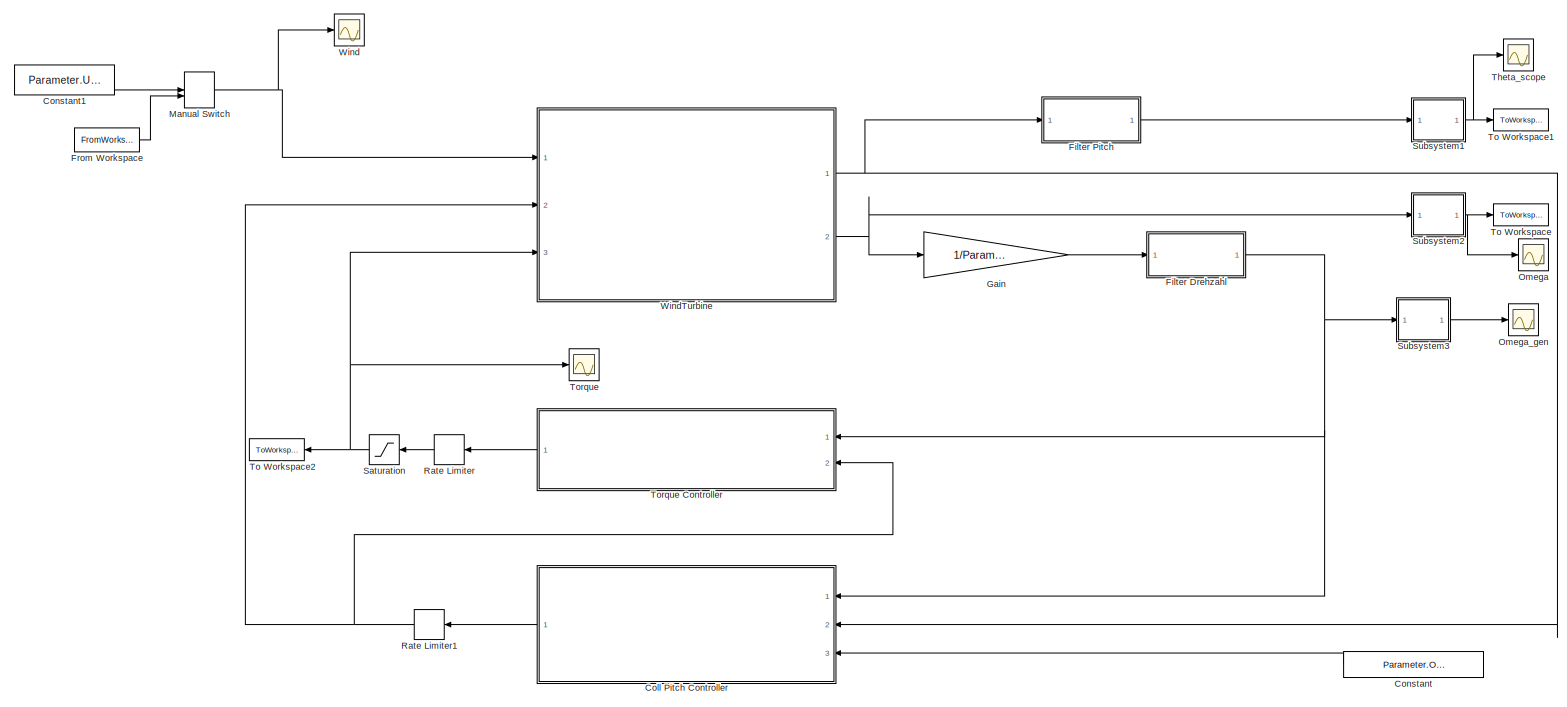
[diagram: root canvas - part 1/1, most of the canvas]
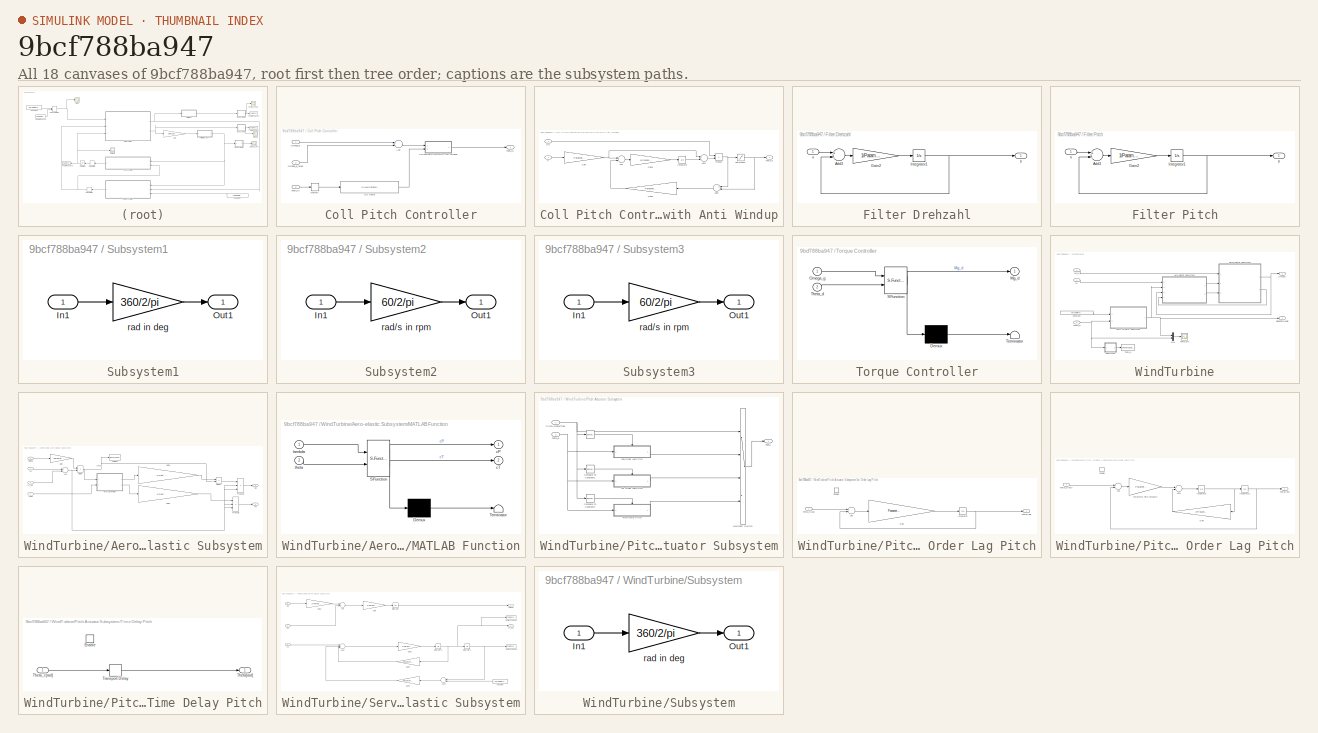
[diagram: thumbnail index - all 18 canvases of the model, root first then tree order]
MODEL slx_9bcf788ba947
KIND model
CONFIG AbsTol = auto
CONFIG EnableMultiTasking = on
CONFIG FixedStep = Parameter.Time.dt
CONFIG MaxStep = auto
CONFIG MinStep = auto
CONFIG RelTol = 1e-3
CONFIG SampleTimeConstraint = Unconstrained
CONFIG Solver = ode4
CONFIG SolverName = ode4
CONFIG StartTime = 0.0
CONFIG StopTime = Parameter.Time.TMax
BLOCK [SubSystem] Coll Pitch Controller
  Ports = [3, 1]
  RequestExecContextInheritance = off
BLOCK [Sum] Coll Pitch Controller/Add
  InputSameDT = off
  Inputs = +-
  OutDataTypeStr = Inherit: Inherit via internal rule
  Ports = [2, 1]
  SaturateOnIntegerOverflow = off
BLOCK [SubSystem] Coll Pitch Controller/Collective Pitch with Anti Windup
  Ports = [2, 1]
  RequestExecContextInheritance = off
BLOCK [Sum] Coll Pitch Controller/Collective Pitch with Anti Windup/Add
  InputSameDT = off
  Inputs = +-
  OutDataTypeStr = Inherit: Inherit via internal rule
  Ports = [2, 1]
  SaturateOnIntegerOverflow = off
BLOCK [Sum] Coll Pitch Controller/Collective Pitch with Anti Windup/Add1
  InputSameDT = off
  OutDataTypeStr = Inherit: Inherit via internal rule
  Ports = [2, 1]
  SaturateOnIntegerOverflow = off
BLOCK [Sum] Coll Pitch Controller/Collective Pitch with Anti Windup/Add2
  InputSameDT = off
  Inputs = +-
  OutDataTypeStr = Inherit: Inherit via internal rule
  Ports = [2, 1]
  SaturateOnIntegerOverflow = off
BLOCK [Inport] Coll Pitch Controller/Collective Pitch with Anti Windup/GS
  IconDisplay = Port number
  Port = 2
BLOCK [Gain] Coll Pitch Controller/Collective Pitch with Anti Windup/Gain
  Gain = Parameter.Pitch.CPC.KP
  OutDataTypeStr = Inherit: Inherit via internal rule
  ParamDataTypeStr = Inherit: Inherit via internal rule
  SaturateOnIntegerOverflow = off
BLOCK [Gain] Coll Pitch Controller/Collective Pitch with Anti Windup/Gain1
  Gain = 1/Parameter.Pitch.CPC.TI
  OutDataTypeStr = Inherit: Inherit via internal rule
  ParamDataTypeStr = Inherit: Inherit via internal rule
  SaturateOnIntegerOverflow = off
BLOCK [Gain] Coll Pitch Controller/Collective Pitch with Anti Windup/Gain2
  Gain = Parameter.Pitch.CPC.AntiWindUp
  OutDataTypeStr = Inherit: Inherit via internal rule
  ParamDataTypeStr = Inherit: Inherit via internal rule
  SaturateOnIntegerOverflow = off
BLOCK [Integrator] Coll Pitch Controller/Collective Pitch with Anti Windup/Integrator
  InitialCondition = Parameter.Pitch.Theta0*(1+Parameter.Pitch.Theta0/Parameter.Pitch.CPC.GS_factor)
  Ports = [1, 1]
BLOCK [Product] Coll Pitch Controller/Collective Pitch with Anti Windup/Product
  InputSameDT = off
  OutDataTypeStr = Inherit: Inherit via internal rule
  Ports = [2, 1]
  RndMeth = Floor
  SaturateOnIntegerOverflow = off
BLOCK [Saturate] Coll Pitch Controller/Collective Pitch with Anti Windup/Saturation1
  InputPortMap = u0
  LowerLimit = Parameter.Pitch.Min
  Ports = [1, 1]
  UpperLimit = Parameter.Pitch.Max
BLOCK [Outport] Coll Pitch Controller/Collective Pitch with Anti Windup/Theta_d
  IconDisplay = Port number
BLOCK [Inport] Coll Pitch Controller/Collective Pitch with Anti Windup/e
  IconDisplay = Port number
BLOCK [Fcn] Coll Pitch Controller/GS factor 
  Expr = 1/(1+u/Parameter.Pitch.CPC.GS_factor)
BLOCK [Memory] Coll Pitch Controller/Memory
  InitialCondition = Parameter.Pitch.Theta0
BLOCK [Inport] Coll Pitch Controller/Omega_g
  IconDisplay = Port number
BLOCK [Inport] Coll Pitch Controller/Omega_g_rated
  IconDisplay = Port number
  Port = 3
BLOCK [Outport] Coll Pitch Controller/Theta_d
  IconDisplay = Port number
BLOCK [Inport] Coll Pitch Controller/Theta_in
  IconDisplay = Port number
  Port = 2
BLOCK [Constant] Constant
  Value = Parameter.Omega_g_rated
BLOCK [Constant] Constant1
  Value = Parameter.URef
BLOCK [SubSystem] Filter Drehzahl
  Ports = [1, 1]
  RequestExecContextInheritance = off
BLOCK [Sum] Filter Drehzahl/Add3
  InputSameDT = off
  Inputs = +-
  OutDataTypeStr = Inherit: Inherit via internal rule
  Ports = [2, 1]
  SaturateOnIntegerOverflow = off
BLOCK [Gain] Filter Drehzahl/Gain2
  Gain = 1/Parameter.VSControl.FilterConstant
BLOCK [Integrator] Filter Drehzahl/Integrator1
  InitialCondition = Parameter.Omega_g0
  Ports = [1, 1]
BLOCK [Inport] Filter Drehzahl/u
  IconDisplay = Port number
BLOCK [Outport] Filter Drehzahl/y
  IconDisplay = Port number
BLOCK [SubSystem] Filter Pitch
  Ports = [1, 1]
  RequestExecContextInheritance = off
BLOCK [Sum] Filter Pitch/Add3
  InputSameDT = off
  Inputs = +-
  OutDataTypeStr = Inherit: Inherit via internal rule
  Ports = [2, 1]
  SaturateOnIntegerOverflow = off
BLOCK [Gain] Filter Pitch/Gain2
  Gain = 1/Parameter.Pitch.FilterConstant
BLOCK [Integrator] Filter Pitch/Integrator1
  InitialCondition = Parameter.Pitch.Theta0
  Ports = [1, 1]
BLOCK [Inport] Filter Pitch/u
  IconDisplay = Port number
BLOCK [Outport] Filter Pitch/y
  IconDisplay = Port number
BLOCK [FromWorkspace] From Workspace
  SampleTime = 0
  VariableName = Parameter.v0
  ZeroCross = on
BLOCK [Gain] Gain
  Gain = 1/Parameter.GBRatio
  OutDataTypeStr = Inherit: Inherit via internal rule
  ParamDataTypeStr = Inherit: Inherit via internal rule
  SaturateOnIntegerOverflow = off
BLOCK [ManualSwitch] Manual Switch
  CurrentSetting = 0
BLOCK [Scope] Omega
  Floating = off
  NumInputPorts = 1
  Ports = [1]
  ScopeSpecificationString = C++SS(StrPVP('Location','[164, 178, 644, 537]'),StrPVP('Open','on'),StrPVP('ZoomMode','yonly'),MxPVP('AxesTitles',54,'struct(''axes1'',''%<SignalLabel>'')'),MxPVP('ScopeGraphics',57,'struct(''FigureColor'',''[0.5 0.5 0.5]'',''AxesColor'',''[0 0 0]'',''AxesTickColor'',''[1 1 1]'',''LineColors'',''[1 1 0;1 0 1;0 1 1;1 0 0;0 1 0;0 0 1]'',''LineStyles'',''-|-|-|-|-|-'',''LineWidths'',''[0.5 0.5 0.5 0....<+348ch>
BLOCK [Scope] Omega_gen
  Floating = off
  NumInputPorts = 1
  Ports = [1]
  ScopeSpecificationString = C++SS(StrPVP('Location','[876, 176, 1356, 535]'),StrPVP('Open','on'),StrPVP('ZoomMode','xonly'),MxPVP('AxesTitles',54,'struct(''axes1'',''%<SignalLabel>'')'),MxPVP('ScopeGraphics',57,'struct(''FigureColor'',''[0.5 0.5 0.5]'',''AxesColor'',''[0 0 0]'',''AxesTickColor'',''[1 1 1]'',''LineColors'',''[1 1 0;1 0 1;0 1 1;1 0 0;0 1 0;0 0 1]'',''LineStyles'',''-|-|-|-|-|-'',''LineWidths'',''[0.5 0.5 0.5 0...<+334ch>
BLOCK [RateLimiter] Rate Limiter
  FallingSlewLimit = -Parameter.VSControl.VS_MaxRat
  RisingSlewLimit = Parameter.VSControl.VS_MaxRat
  SampleTimeMode = inherited
BLOCK [RateLimiter] Rate Limiter1
  FallingSlewLimit = -Parameter.Pitch.RateLimit
  InitialCondition = Parameter.Pitch.ThetaDot0
  RisingSlewLimit = Parameter.Pitch.RateLimit
  SampleTimeMode = inherited
BLOCK [Saturate] Saturation
  InputPortMap = u0
  LowerLimit = -inf
  Ports = [1, 1]
  UpperLimit = Parameter.VSControl.VS_MaxTq
BLOCK [SubSystem] Subsystem1
  Ports = [1, 1]
  RequestExecContextInheritance = off
BLOCK [Inport] Subsystem1/In1
  IconDisplay = Port number
BLOCK [Outport] Subsystem1/Out1
  IconDisplay = Port number
BLOCK [Gain] Subsystem1/rad in deg
  Gain = 360/2/pi
BLOCK [SubSystem] Subsystem2
  Ports = [1, 1]
  RequestExecContextInheritance = off
BLOCK [Inport] Subsystem2/In1
  IconDisplay = Port number
BLOCK [Outport] Subsystem2/Out1
  IconDisplay = Port number
BLOCK [Gain] Subsystem2/rad//s in rpm
  Gain = 60/2/pi
BLOCK [SubSystem] Subsystem3
  Ports = [1, 1]
  RequestExecContextInheritance = off
BLOCK [Inport] Subsystem3/In1
  IconDisplay = Port number
BLOCK [Outport] Subsystem3/Out1
  IconDisplay = Port number
BLOCK [Gain] Subsystem3/rad//s in rpm
  Gain = 60/2/pi
BLOCK [Scope] Theta_scope
  Floating = off
  NumInputPorts = 1
  Ports = [1]
  ScopeSpecificationString = C++SS(StrPVP('Location','[493, 322, 1356, 757]'),StrPVP('Open','on'),StrPVP('ZoomMode','xonly'),MxPVP('AxesTitles',54,'struct(''axes1'',''%<SignalLabel>'')'),MxPVP('ScopeGraphics',57,'struct(''FigureColor'',''[0.5 0.5 0.5]'',''AxesColor'',''[0 0 0]'',''AxesTickColor'',''[1 1 1]'',''LineColors'',''[1 1 0;1 0 1;0 1 1;1 0 0;0 1 0;0 0 1]'',''LineStyles'',''-|-|-|-|-|-'',''LineWidths'',''[0.5 0.5 0.5 0...<+321ch>
BLOCK [ToWorkspace] To Workspace
  MaxDataPoints = inf
  Ports = [1]
  SampleTime = -1
  SaveFormat = Structure With Time
  VariableName = Omega
BLOCK [ToWorkspace] To Workspace1
  MaxDataPoints = inf
  Ports = [1]
  SampleTime = -1
  SaveFormat = Structure With Time
  VariableName = Theta
BLOCK [ToWorkspace] To Workspace2
  MaxDataPoints = inf
  Ports = [1]
  SampleTime = -1
  SaveFormat = Structure With Time
  VariableName = Mg
BLOCK [Scope] Torque
  Floating = off
  NumInputPorts = 1
  Ports = [1]
  ScopeSpecificationString = C++SS(StrPVP('Location','[724, 490, 1571, 891]'),StrPVP('Open','off'),StrPVP('ZoomMode','yonly'),MxPVP('AxesTitles',54,'struct(''axes1'',''%<SignalLabel>'')'),MxPVP('ScopeGraphics',57,'struct(''FigureColor'',''[0.5 0.5 0.5]'',''AxesColor'',''[0 0 0]'',''AxesTickColor'',''[1 1 1]'',''LineColors'',''[1 1 0;1 0 1;0 1 1;1 0 0;0 1 0;0 0 1]'',''LineStyles'',''-|-|-|-|-|-'',''LineWidths'',''[0.5 0.5 0.5 ...<+322ch>
BLOCK [SubSystem] Torque Controller
  ErrorFcn = Stateflow.Translate.translate
  PermitHierarchicalResolution = ExplicitOnly
  Ports = [2, 1]
  RequestExecContextInheritance = off
  SFBlockType = MATLAB Function
  TreatAsAtomicUnit = on
BLOCK [Demux] Torque Controller/ Demux 
  Outputs = 1
  Ports = [1, 1]
BLOCK [S-Function] Torque Controller/ SFunction 
  EnableBusSupport = off
  FunctionName = sf_sfun
  Parameters = Parameter
  PortCounts = [2 2]
  Ports = [2, 2]
  SFcnIsStateOwnerBlock = off
  SFunctionDeploymentMode = off
  Tag = Stateflow S-Function 2
BLOCK [Terminator] Torque Controller/ Terminator 
BLOCK [Outport] Torque Controller/Mg_d
  IconDisplay = Port number
BLOCK [Inport] Torque Controller/Omega_g
  IconDisplay = Port number
BLOCK [Inport] Torque Controller/Theta_d
  IconDisplay = Port number
  Port = 2
BLOCK [Scope] Wind
  Floating = off
  NumInputPorts = 1
  Ports = [1]
  ScopeSpecificationString = C++SS(StrPVP('Location','[509, 118, 1356, 519]'),StrPVP('Open','on'),MxPVP('AxesTitles',54,'struct(''axes1'',''%<SignalLabel>'')'),MxPVP('ScopeGraphics',57,'struct(''FigureColor'',''[0.5 0.5 0.5]'',''AxesColor'',''[0 0 0]'',''AxesTickColor'',''[1 1 1]'',''LineColors'',''[1 1 0;1 0 1;0 1 1;1 0 0;0 1 0;0 0 1]'',''LineStyles'',''-|-|-|-|-|-'',''LineWidths'',''[0.5 0.5 0.5 0.5 0.5 0.5]'',''MarkerStyle...<+292ch>
BLOCK [SubSystem] WindTurbine
  Ports = [3, 2]
  RequestExecContextInheritance = off
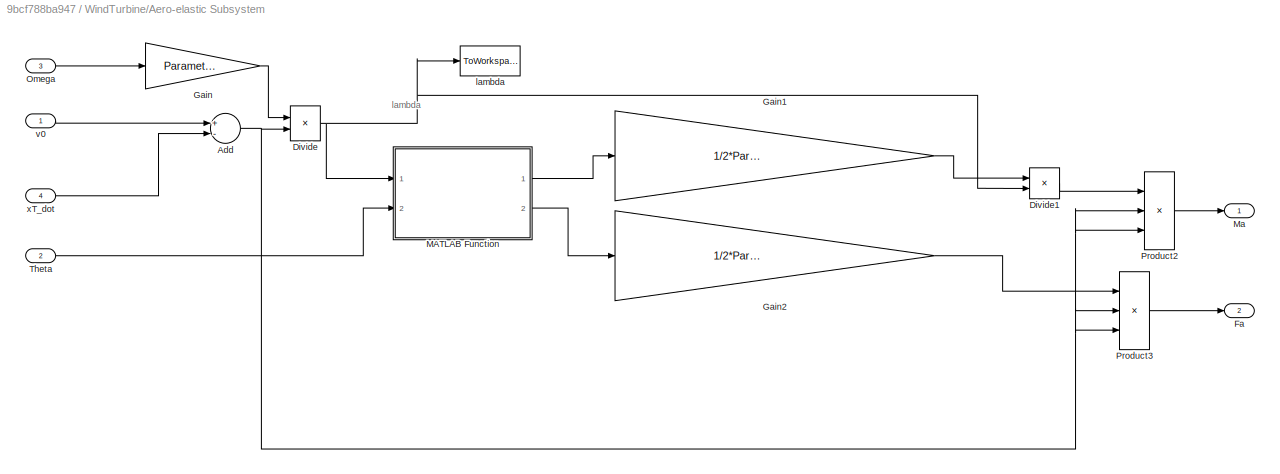
BLOCK [SubSystem] WindTurbine/Aero-elastic Subsystem
  Ports = [4, 2]
  RequestExecContextInheritance = off
BLOCK [Sum] WindTurbine/Aero-elastic Subsystem/Add
  InputSameDT = off
  Inputs = +-
  OutDataTypeStr = Inherit: Inherit via internal rule
  Ports = [2, 1]
  SaturateOnIntegerOverflow = off
BLOCK [Product] WindTurbine/Aero-elastic Subsystem/Divide
  InputSameDT = off
  Inputs = */
  OutDataTypeStr = Inherit: Inherit via internal rule
  Ports = [2, 1]
  RndMeth = Floor
  SaturateOnIntegerOverflow = off
BLOCK [Product] WindTurbine/Aero-elastic Subsystem/Divide1
  InputSameDT = off
  Inputs = */
  OutDataTypeStr = Inherit: Inherit via internal rule
  Ports = [2, 1]
  RndMeth = Floor
  SaturateOnIntegerOverflow = off
BLOCK [Outport] WindTurbine/Aero-elastic Subsystem/Fa 
  IconDisplay = Port number
  Port = 2
BLOCK [Gain] WindTurbine/Aero-elastic Subsystem/Gain
  Gain = Parameter.Rotor
  OutDataTypeStr = Inherit: Inherit via internal rule
  ParamDataTypeStr = Inherit: Inherit via internal rule
  SaturateOnIntegerOverflow = off
BLOCK [Gain] WindTurbine/Aero-elastic Subsystem/Gain1
  Gain = 1/2*Parameter.rho*pi*Parameter.Rotor^3
  OutDataTypeStr = Inherit: Inherit via internal rule
  ParamDataTypeStr = Inherit: Inherit via internal rule
  SaturateOnIntegerOverflow = off
BLOCK [Gain] WindTurbine/Aero-elastic Subsystem/Gain2
  Gain = 1/2*Parameter.rho*pi*Parameter.Rotor^2
  OutDataTypeStr = Inherit: Inherit via internal rule
  ParamDataTypeStr = Inherit: Inherit via internal rule
  SaturateOnIntegerOverflow = off
BLOCK [SubSystem] WindTurbine/Aero-elastic Subsystem/MATLAB Function
  ErrorFcn = Stateflow.Translate.translate
  PermitHierarchicalResolution = ExplicitOnly
  Ports = [2, 2]
  RequestExecContextInheritance = off
  SFBlockType = MATLAB Function
  TreatAsAtomicUnit = on
BLOCK [Demux] WindTurbine/Aero-elastic Subsystem/MATLAB Function/ Demux 
  Outputs = 1
  Ports = [1, 1]
BLOCK [S-Function] WindTurbine/Aero-elastic Subsystem/MATLAB Function/ SFunction 
  EnableBusSupport = off
  FunctionName = sf_sfun
  Parameters = cP_modelrm,cT_modelrm
  PortCounts = [2 3]
  Ports = [2, 3]
  SFcnIsStateOwnerBlock = off
  SFunctionDeploymentMode = off
  Tag = Stateflow S-Function 1
BLOCK [Terminator] WindTurbine/Aero-elastic Subsystem/MATLAB Function/ Terminator 
BLOCK [Outport] WindTurbine/Aero-elastic Subsystem/MATLAB Function/cP
  IconDisplay = Port number
BLOCK [Outport] WindTurbine/Aero-elastic Subsystem/MATLAB Function/cT
  IconDisplay = Port number
  Port = 2
BLOCK [Inport] WindTurbine/Aero-elastic Subsystem/MATLAB Function/lambda
  IconDisplay = Port number
BLOCK [Inport] WindTurbine/Aero-elastic Subsystem/MATLAB Function/theta
  IconDisplay = Port number
  Port = 2
BLOCK [Outport] WindTurbine/Aero-elastic Subsystem/Ma
  IconDisplay = Port number
BLOCK [Inport] WindTurbine/Aero-elastic Subsystem/Omega
  IconDisplay = Port number
  Port = 3
BLOCK [Product] WindTurbine/Aero-elastic Subsystem/Product2
  InputSameDT = off
  Inputs = 3
  OutDataTypeStr = Inherit: Inherit via internal rule
  Ports = [3, 1]
  SaturateOnIntegerOverflow = off
BLOCK [Product] WindTurbine/Aero-elastic Subsystem/Product3
  InputSameDT = off
  Inputs = 3
  OutDataTypeStr = Inherit: Inherit via internal rule
  Ports = [3, 1]
  SaturateOnIntegerOverflow = off
BLOCK [Inport] WindTurbine/Aero-elastic Subsystem/Theta
  IconDisplay = Port number
  Port = 2
BLOCK [ToWorkspace] WindTurbine/Aero-elastic Subsystem/lambda 
  FixptAsFi = on
  MaxDataPoints = inf
  Ports = [1]
  SampleTime = -1
  SaveFormat = Structure With Time
  VariableName = lambda
BLOCK [Inport] WindTurbine/Aero-elastic Subsystem/v0
  IconDisplay = Port number
BLOCK [Inport] WindTurbine/Aero-elastic Subsystem/xT_dot
  IconDisplay = Port number
  Port = 4
BLOCK [Outport] WindTurbine/BladePitchAngle
  IconDisplay = Port number
BLOCK [Constant] WindTurbine/Constant
  Value = Parameter.Pitch.ActuatorType
BLOCK [Inport] WindTurbine/Mg_d
  IconDisplay = Port number
  Port = 3
BLOCK [Mux] WindTurbine/Mux
  DisplayOption = bar
  Inputs = 2
  Ports = [2, 1]
BLOCK [Outport] WindTurbine/Omega
  IconDisplay = Port number
  Port = 2
BLOCK [SubSystem] WindTurbine/Pitch Actuator Subsystem
  Ports = [2, 1]
  RequestExecContextInheritance = off
BLOCK [Reference] WindTurbine/Pitch Actuator Subsystem/   REF=simulink/Logic and Bit
Operations/Compare
To Constant
  Ports = [1, 1]
  SourceBlock = simulink/Logic and Bit\nOperations/Compare\nTo Constant
  SourceProductBaseCode = SL
  SourceProductName = Simulink
  SourceType = Compare To Constant
BLOCK [SubSystem] WindTurbine/Pitch Actuator Subsystem/1st Order Lag Pitch
  Ports = [1, 1, 1]
  RequestExecContextInheritance = off
  TreatAsAtomicUnit = on
BLOCK [Sum] WindTurbine/Pitch Actuator Subsystem/1st Order Lag Pitch/Add
  InputSameDT = off
  Inputs = +-
  OutDataTypeStr = Inherit: Inherit via internal rule
  Ports = [2, 1]
  SaturateOnIntegerOverflow = off
BLOCK [EnablePort] WindTurbine/Pitch Actuator Subsystem/1st Order Lag Pitch/Enable
  Ports = []
BLOCK [Gain] WindTurbine/Pitch Actuator Subsystem/1st Order Lag Pitch/Gain
  Gain = Parameter.Pitch.omega/(2*Parameter.Pitch.xi)
  OutDataTypeStr = Inherit: Inherit via internal rule
  ParamDataTypeStr = Inherit: Inherit via internal rule
  SaturateOnIntegerOverflow = off
BLOCK [Integrator] WindTurbine/Pitch Actuator Subsystem/1st Order Lag Pitch/Integrator
  InitialCondition = Parameter.Pitch.Theta0
  Ports = [1, 1]
BLOCK [Outport] WindTurbine/Pitch Actuator Subsystem/1st Order Lag Pitch/Theta[rad]
  IconDisplay = Port number
BLOCK [Inport] WindTurbine/Pitch Actuator Subsystem/1st Order Lag Pitch/Theta_c[rad]
  IconDisplay = Port number
BLOCK [SubSystem] WindTurbine/Pitch Actuator Subsystem/2nd Order Lag Pitch
  Ports = [1, 1, 1]
  RequestExecContextInheritance = off
  TreatAsAtomicUnit = on
BLOCK [Sum] WindTurbine/Pitch Actuator Subsystem/2nd Order Lag Pitch/Add
  InputSameDT = off
  Inputs = +-
  OutDataTypeStr = Inherit: Inherit via internal rule
  Ports = [2, 1]
  SaturateOnIntegerOverflow = off
BLOCK [Sum] WindTurbine/Pitch Actuator Subsystem/2nd Order Lag Pitch/Add1
  InputSameDT = off
  Inputs = +-
  OutDataTypeStr = Inherit: Inherit via internal rule
  Ports = [2, 1]
  SaturateOnIntegerOverflow = off
BLOCK [EnablePort] WindTurbine/Pitch Actuator Subsystem/2nd Order Lag Pitch/Enable
  Ports = []
BLOCK [Gain] WindTurbine/Pitch Actuator Subsystem/2nd Order Lag Pitch/Gain
  Gain = 2*Parameter.Pitch.xi*Parameter.Pitch.omega
  OutDataTypeStr = Inherit: Inherit via internal rule
  ParamDataTypeStr = Inherit: Inherit via internal rule
  SaturateOnIntegerOverflow = off
BLOCK [Integrator] WindTurbine/Pitch Actuator Subsystem/2nd Order Lag Pitch/Integrator
  InitialCondition = Parameter.Pitch.ThetaDot0
  Ports = [1, 1]
BLOCK [Integrator] WindTurbine/Pitch Actuator Subsystem/2nd Order Lag Pitch/Integrator1
  InitialCondition = Parameter.Pitch.Theta0
  Ports = [1, 1]
BLOCK [Gain] WindTurbine/Pitch Actuator Subsystem/2nd Order Lag Pitch/Parameter.Pitch.omega^2
  Gain = Parameter.Pitch.omega^2
  OutDataTypeStr = Inherit: Inherit via internal rule
  ParamDataTypeStr = Inherit: Inherit via internal rule
  SaturateOnIntegerOverflow = off
BLOCK [Outport] WindTurbine/Pitch Actuator Subsystem/2nd Order Lag Pitch/Theta[rad] 
  IconDisplay = Port number
BLOCK [Inport] WindTurbine/Pitch Actuator Subsystem/2nd Order Lag Pitch/Theta_c[rad])
  IconDisplay = Port number
BLOCK [Reference] WindTurbine/Pitch Actuator Subsystem/Compare To Constant1  REF=simulink/Logic and Bit
Operations/Compare
To Constant
  Ports = [1, 1]
  SourceBlock = simulink/Logic and Bit\nOperations/Compare\nTo Constant
  SourceProductBaseCode = SL
  SourceProductName = Simulink
  SourceType = Compare To Constant
BLOCK [Reference] WindTurbine/Pitch Actuator Subsystem/Compare To Constant2  REF=simulink/Logic and Bit
Operations/Compare
To Constant
  Ports = [1, 1]
  SourceBlock = simulink/Logic and Bit\nOperations/Compare\nTo Constant
  SourceProductBaseCode = SL
  SourceProductName = Simulink
  SourceType = Compare To Constant
BLOCK [MultiPortSwitch] WindTurbine/Pitch Actuator Subsystem/Multiport Switch
  InputSameDT = off
  Ports = [4, 1]
  SaturateOnIntegerOverflow = off
BLOCK [Inport] WindTurbine/Pitch Actuator Subsystem/PitchActuatorType 
  IconDisplay = Port number
BLOCK [Outport] WindTurbine/Pitch Actuator Subsystem/Theta
  IconDisplay = Port number
BLOCK [Inport] WindTurbine/Pitch Actuator Subsystem/Theta_d
  IconDisplay = Port number
  Port = 2
BLOCK [SubSystem] WindTurbine/Pitch Actuator Subsystem/Time Delay Pitch
  Ports = [1, 1, 1]
  RequestExecContextInheritance = off
  TreatAsAtomicUnit = on
BLOCK [EnablePort] WindTurbine/Pitch Actuator Subsystem/Time Delay Pitch/Enable
  Ports = []
BLOCK [Outport] WindTurbine/Pitch Actuator Subsystem/Time Delay Pitch/Theta[rad]
  IconDisplay = Port number
BLOCK [Inport] WindTurbine/Pitch Actuator Subsystem/Time Delay Pitch/Theta_c[rad]
  IconDisplay = Port number
BLOCK [TransportDelay] WindTurbine/Pitch Actuator Subsystem/Time Delay Pitch/Transport Delay
  DelayTime = Parameter.Pitch.Delay
  InitialOutput = Parameter.Pitch.Theta0
  Ports = [1, 1]
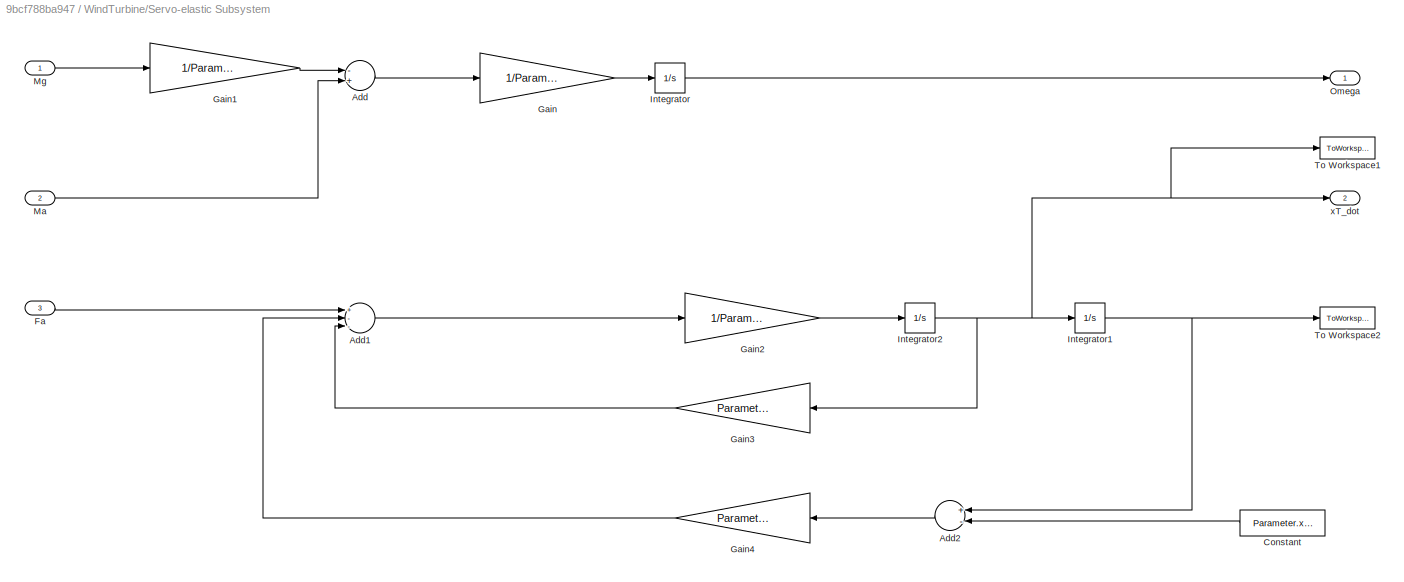
BLOCK [SubSystem] WindTurbine/Servo-elastic Subsystem
  Ports = [3, 2]
  RequestExecContextInheritance = off
BLOCK [Sum] WindTurbine/Servo-elastic Subsystem/Add
  InputSameDT = off
  Inputs = -+
  OutDataTypeStr = Inherit: Inherit via internal rule
  Ports = [2, 1]
  SaturateOnIntegerOverflow = off
BLOCK [Sum] WindTurbine/Servo-elastic Subsystem/Add1
  InputSameDT = off
  Inputs = +--
  OutDataTypeStr = Inherit: Inherit via internal rule
  Ports = [3, 1]
  SaturateOnIntegerOverflow = off
BLOCK [Sum] WindTurbine/Servo-elastic Subsystem/Add2
  InputSameDT = off
  Inputs = +-
  OutDataTypeStr = Inherit: Inherit via internal rule
  Ports = [2, 1]
  SaturateOnIntegerOverflow = off
BLOCK [Constant] WindTurbine/Servo-elastic Subsystem/Constant
  Value = Parameter.xT0
BLOCK [Inport] WindTurbine/Servo-elastic Subsystem/Fa
  IconDisplay = Port number
  Port = 3
BLOCK [Gain] WindTurbine/Servo-elastic Subsystem/Gain
  Gain = 1/Parameter.Inertia
  OutDataTypeStr = Inherit: Inherit via internal rule
  ParamDataTypeStr = Inherit: Inherit via internal rule
  SaturateOnIntegerOverflow = off
BLOCK [Gain] WindTurbine/Servo-elastic Subsystem/Gain1
  Gain = 1/Parameter.GBRatio
  OutDataTypeStr = Inherit: Inherit via internal rule
  ParamDataTypeStr = Inherit: Inherit via internal rule
  SaturateOnIntegerOverflow = off
BLOCK [Gain] WindTurbine/Servo-elastic Subsystem/Gain2
  Gain = 1/Parameter.mTe
  OutDataTypeStr = Inherit: Inherit via internal rule
  ParamDataTypeStr = Inherit: Inherit via internal rule
  SaturateOnIntegerOverflow = off
BLOCK [Gain] WindTurbine/Servo-elastic Subsystem/Gain3
  Gain = Parameter.cTe
  OutDataTypeStr = Inherit: Inherit via internal rule
  ParamDataTypeStr = Inherit: Inherit via internal rule
  SaturateOnIntegerOverflow = off
BLOCK [Gain] WindTurbine/Servo-elastic Subsystem/Gain4
  Gain = Parameter.kTe
  OutDataTypeStr = Inherit: Inherit via internal rule
  ParamDataTypeStr = Inherit: Inherit via internal rule
  SaturateOnIntegerOverflow = off
BLOCK [Integrator] WindTurbine/Servo-elastic Subsystem/Integrator
  InitialCondition = Parameter.Omega0
  Ports = [1, 1]
BLOCK [Integrator] WindTurbine/Servo-elastic Subsystem/Integrator1
  InitialCondition = Parameter.xT0
  Ports = [1, 1]
BLOCK [Integrator] WindTurbine/Servo-elastic Subsystem/Integrator2
  InitialCondition = Parameter.xt_dot0
  Ports = [1, 1]
BLOCK [Inport] WindTurbine/Servo-elastic Subsystem/Ma
  IconDisplay = Port number
  Port = 2
BLOCK [Inport] WindTurbine/Servo-elastic Subsystem/Mg
  IconDisplay = Port number
BLOCK [Outport] WindTurbine/Servo-elastic Subsystem/Omega
  IconDisplay = Port number
BLOCK [ToWorkspace] WindTurbine/Servo-elastic Subsystem/To Workspace1
  MaxDataPoints = inf
  Ports = [1]
  SampleTime = -1
  SaveFormat = Structure With Time
  VariableName = xT_dot
BLOCK [ToWorkspace] WindTurbine/Servo-elastic Subsystem/To Workspace2
  MaxDataPoints = inf
  Ports = [1]
  SampleTime = -1
  SaveFormat = Structure With Time
  VariableName = xT
BLOCK [Outport] WindTurbine/Servo-elastic Subsystem/xT_dot 
  IconDisplay = Port number
  Port = 2
BLOCK [SubSystem] WindTurbine/Subsystem
  Ports = [1, 1]
  RequestExecContextInheritance = off
BLOCK [Inport] WindTurbine/Subsystem/In1
  IconDisplay = Port number
BLOCK [Outport] WindTurbine/Subsystem/Out1
  IconDisplay = Port number
BLOCK [Gain] WindTurbine/Subsystem/rad in deg
  Gain = 360/2/pi
BLOCK [ToWorkspace] WindTurbine/Theta_c
  FixptAsFi = on
  MaxDataPoints = inf
  Ports = [1]
  SampleTime = -1
  SaveFormat = Structure With Time
  VariableName = Theta_d
BLOCK [Inport] WindTurbine/Theta_d
  IconDisplay = Port number
  Port = 2
BLOCK [Scope] WindTurbine/Theta_dyn 
  Floating = off
  NumInputPorts = 1
  Ports = [1]
  ScopeSpecificationString = C++SS(StrPVP('Location','[188, 365, 512, 604]'),StrPVP('Open','off'),MxPVP('AxesTitles',54,'struct(''axes1'',''%<SignalLabel>'')'),MxPVP('ScopeGraphics',57,'struct(''FigureColor'',''[0.5 0.5 0.5]'',''AxesColor'',''[0 0 0]'',''AxesTickColor'',''[1 1 1]'',''LineColors'',''[1 1 0;1 0 1;0 1 1;1 0 0;0 1 0;0 0 1]'',''LineStyles'',''-|-|-|-|-|-'',''LineWidths'',''[0.5 0.5 0.5 0.5 0.5 0.5]'',''MarkerStyle...<+251ch>
BLOCK [Inport] WindTurbine/v0
  IconDisplay = Port number
ANNOTATION WindTurbine/Aero-elastic Subsystem: lambda
LINE Coll Pitch Controller/Add:1 -> Coll Pitch Controller/Collective Pitch with Anti Windup:1
LINE Coll Pitch Controller/Collective Pitch with Anti Windup/Add1:1 -> Coll Pitch Controller/Collective Pitch with Anti Windup/Product:2
LINE Coll Pitch Controller/Collective Pitch with Anti Windup/Add2:1 -> Coll Pitch Controller/Collective Pitch with Anti Windup/Gain2:1
LINE Coll Pitch Controller/Collective Pitch with Anti Windup/Add:1 -> Coll Pitch Controller/Collective Pitch with Anti Windup/Gain1:1
LINE Coll Pitch Controller/Collective Pitch with Anti Windup/GS:1 -> Coll Pitch Controller/Collective Pitch with Anti Windup/Product:1
LINE Coll Pitch Controller/Collective Pitch with Anti Windup/Gain1:1 -> Coll Pitch Controller/Collective Pitch with Anti Windup/Integrator:1
LINE Coll Pitch Controller/Collective Pitch with Anti Windup/Gain2:1 -> Coll Pitch Controller/Collective Pitch with Anti Windup/Add:2
NET Coll Pitch Controller/Collective Pitch with Anti Windup/Gain:1 -> Coll Pitch Controller/Collective Pitch with Anti Windup/Add1:1, Coll Pitch Controller/Collective Pitch with Anti Windup/Add:1
LINE Coll Pitch Controller/Collective Pitch with Anti Windup/Integrator:1 -> Coll Pitch Controller/Collective Pitch with Anti Windup/Add1:2
NET Coll Pitch Controller/Collective Pitch with Anti Windup/Product:1 -> Coll Pitch Controller/Collective Pitch with Anti Windup/Add2:1, Coll Pitch Controller/Collective Pitch with Anti Windup/Saturation1:1
NET Coll Pitch Controller/Collective Pitch with Anti Windup/Saturation1:1 -> Coll Pitch Controller/Collective Pitch with Anti Windup/Add2:2, Coll Pitch Controller/Collective Pitch with Anti Windup/Theta_d:1
LINE Coll Pitch Controller/Collective Pitch with Anti Windup/e:1 -> Coll Pitch Controller/Collective Pitch with Anti Windup/Gain:1
LINE Coll Pitch Controller/Collective Pitch with Anti Windup:1 -> Coll Pitch Controller/Theta_d:1
LINE Coll Pitch Controller/GS factor :1 -> Coll Pitch Controller/Collective Pitch with Anti Windup:2
LINE Coll Pitch Controller/Memory:1 -> Coll Pitch Controller/GS factor :1
LINE Coll Pitch Controller/Omega_g:1 -> Coll Pitch Controller/Add:1
LINE Coll Pitch Controller/Omega_g_rated:1 -> Coll Pitch Controller/Add:2
LINE Coll Pitch Controller/Theta_in:1 -> Coll Pitch Controller/Memory:1
LINE Coll Pitch Controller:1 -> Rate Limiter1:1
LINE Constant1:1 -> Manual Switch:1
LINE Constant:1 -> Coll Pitch Controller:3
LINE Filter Drehzahl/Add3:1 -> Filter Drehzahl/Gain2:1
LINE Filter Drehzahl/Gain2:1 -> Filter Drehzahl/Integrator1:1
NET Filter Drehzahl/Integrator1:1 -> Filter Drehzahl/Add3:2, Filter Drehzahl/y:1
LINE Filter Drehzahl/u:1 -> Filter Drehzahl/Add3:1
NET Filter Drehzahl:1 -> Coll Pitch Controller:1, Subsystem3:1, Torque Controller:1
LINE Filter Pitch/Add3:1 -> Filter Pitch/Gain2:1
LINE Filter Pitch/Gain2:1 -> Filter Pitch/Integrator1:1
NET Filter Pitch/Integrator1:1 -> Filter Pitch/Add3:2, Filter Pitch/y:1
LINE Filter Pitch/u:1 -> Filter Pitch/Add3:1
LINE Filter Pitch:1 -> Subsystem1:1
LINE From Workspace:1 -> Manual Switch:2
LINE Gain:1 -> Filter Drehzahl:1
NET Manual Switch:1 -> Wind:1, WindTurbine:1
NET Rate Limiter1:1 -> Torque Controller:2, WindTurbine:2
LINE Rate Limiter:1 -> Saturation:1
NET Saturation:1 -> To Workspace2:1, Torque:1, WindTurbine:3
LINE Subsystem1/In1:1 -> Subsystem1/rad in deg:1
LINE Subsystem1/rad in deg:1 -> Subsystem1/Out1:1
NET Subsystem1:1 -> Theta_scope:1, To Workspace1:1
LINE Subsystem2/In1:1 -> Subsystem2/rad//s in rpm:1
LINE Subsystem2/rad//s in rpm:1 -> Subsystem2/Out1:1
NET Subsystem2:1 -> Omega:1, To Workspace:1
LINE Subsystem3/In1:1 -> Subsystem3/rad//s in rpm:1
LINE Subsystem3/rad//s in rpm:1 -> Subsystem3/Out1:1
LINE Subsystem3:1 -> Omega_gen:1
LINE Torque Controller:1 -> Rate Limiter:1
NET WindTurbine/Aero-elastic Subsystem/Add:1 -> WindTurbine/Aero-elastic Subsystem/Divide:2, WindTurbine/Aero-elastic Subsystem/Product2:2, WindTurbine/Aero-elastic Subsystem/Product2:3, WindTurbine/Aero-elastic Subsystem/Product3:2, WindTurbine/Aero-elastic Subsystem/Product3:3
LINE WindTurbine/Aero-elastic Subsystem/Divide1:1 -> WindTurbine/Aero-elastic Subsystem/Product2:1
NET WindTurbine/Aero-elastic Subsystem/Divide:1 -> WindTurbine/Aero-elastic Subsystem/Divide1:2, WindTurbine/Aero-elastic Subsystem/MATLAB Function:1, WindTurbine/Aero-elastic Subsystem/lambda :1
LINE WindTurbine/Aero-elastic Subsystem/Gain1:1 -> WindTurbine/Aero-elastic Subsystem/Divide1:1
LINE WindTurbine/Aero-elastic Subsystem/Gain2:1 -> WindTurbine/Aero-elastic Subsystem/Product3:1
LINE WindTurbine/Aero-elastic Subsystem/Gain:1 -> WindTurbine/Aero-elastic Subsystem/Divide:1
LINE WindTurbine/Aero-elastic Subsystem/MATLAB Function:1 -> WindTurbine/Aero-elastic Subsystem/Gain1:1
LINE WindTurbine/Aero-elastic Subsystem/MATLAB Function:2 -> WindTurbine/Aero-elastic Subsystem/Gain2:1
LINE WindTurbine/Aero-elastic Subsystem/Omega:1 -> WindTurbine/Aero-elastic Subsystem/Gain:1
LINE WindTurbine/Aero-elastic Subsystem/Product2:1 -> WindTurbine/Aero-elastic Subsystem/Ma:1
LINE WindTurbine/Aero-elastic Subsystem/Product3:1 -> WindTurbine/Aero-elastic Subsystem/Fa :1
LINE WindTurbine/Aero-elastic Subsystem/Theta:1 -> WindTurbine/Aero-elastic Subsystem/MATLAB Function:2
LINE WindTurbine/Aero-elastic Subsystem/v0:1 -> WindTurbine/Aero-elastic Subsystem/Add:1
LINE WindTurbine/Aero-elastic Subsystem/xT_dot:1 -> WindTurbine/Aero-elastic Subsystem/Add:2
LINE WindTurbine/Aero-elastic Subsystem:1 -> WindTurbine/Servo-elastic Subsystem:2
LINE WindTurbine/Aero-elastic Subsystem:2 -> WindTurbine/Servo-elastic Subsystem:3
LINE WindTurbine/Constant:1 -> WindTurbine/Pitch Actuator Subsystem:1
LINE WindTurbine/Mg_d:1 -> WindTurbine/Servo-elastic Subsystem:1
LINE WindTurbine/Mux:1 -> WindTurbine/Theta_dyn :1
LINE WindTurbine/Pitch Actuator Subsystem/ :1 -> WindTurbine/Pitch Actuator Subsystem/2nd Order Lag Pitch:enable
LINE WindTurbine/Pitch Actuator Subsystem/1st Order Lag Pitch/Add:1 -> WindTurbine/Pitch Actuator Subsystem/1st Order Lag Pitch/Gain:1
LINE WindTurbine/Pitch Actuator Subsystem/1st Order Lag Pitch/Gain:1 -> WindTurbine/Pitch Actuator Subsystem/1st Order Lag Pitch/Integrator:1
NET WindTurbine/Pitch Actuator Subsystem/1st Order Lag Pitch/Integrator:1 -> WindTurbine/Pitch Actuator Subsystem/1st Order Lag Pitch/Add:2, WindTurbine/Pitch Actuator Subsystem/1st Order Lag Pitch/Theta[rad]:1
LINE WindTurbine/Pitch Actuator Subsystem/1st Order Lag Pitch/Theta_c[rad]:1 -> WindTurbine/Pitch Actuator Subsystem/1st Order Lag Pitch/Add:1
LINE WindTurbine/Pitch Actuator Subsystem/1st Order Lag Pitch:1 -> WindTurbine/Pitch Actuator Subsystem/Multiport Switch:3
LINE WindTurbine/Pitch Actuator Subsystem/2nd Order Lag Pitch/Add1:1 -> WindTurbine/Pitch Actuator Subsystem/2nd Order Lag Pitch/Integrator:1
LINE WindTurbine/Pitch Actuator Subsystem/2nd Order Lag Pitch/Add:1 -> WindTurbine/Pitch Actuator Subsystem/2nd Order Lag Pitch/Parameter.Pitch.omega^2:1
LINE WindTurbine/Pitch Actuator Subsystem/2nd Order Lag Pitch/Gain:1 -> WindTurbine/Pitch Actuator Subsystem/2nd Order Lag Pitch/Add1:2
NET WindTurbine/Pitch Actuator Subsystem/2nd Order Lag Pitch/Integrator1:1 -> WindTurbine/Pitch Actuator Subsystem/2nd Order Lag Pitch/Add:2, WindTurbine/Pitch Actuator Subsystem/2nd Order Lag Pitch/Theta[rad] :1
NET WindTurbine/Pitch Actuator Subsystem/2nd Order Lag Pitch/Integrator:1 -> WindTurbine/Pitch Actuator Subsystem/2nd Order Lag Pitch/Gain:1, WindTurbine/Pitch Actuator Subsystem/2nd Order Lag Pitch/Integrator1:1
LINE WindTurbine/Pitch Actuator Subsystem/2nd Order Lag Pitch/Parameter.Pitch.omega^2:1 -> WindTurbine/Pitch Actuator Subsystem/2nd Order Lag Pitch/Add1:1
LINE WindTurbine/Pitch Actuator Subsystem/2nd Order Lag Pitch/Theta_c[rad]):1 -> WindTurbine/Pitch Actuator Subsystem/2nd Order Lag Pitch/Add:1
LINE WindTurbine/Pitch Actuator Subsystem/2nd Order Lag Pitch:1 -> WindTurbine/Pitch Actuator Subsystem/Multiport Switch:2
LINE WindTurbine/Pitch Actuator Subsystem/Compare To Constant1:1 -> WindTurbine/Pitch Actuator Subsystem/1st Order Lag Pitch:enable
LINE WindTurbine/Pitch Actuator Subsystem/Compare To Constant2:1 -> WindTurbine/Pitch Actuator Subsystem/Time Delay Pitch:enable
LINE WindTurbine/Pitch Actuator Subsystem/Multiport Switch:1 -> WindTurbine/Pitch Actuator Subsystem/Theta:1
NET WindTurbine/Pitch Actuator Subsystem/PitchActuatorType :1 -> WindTurbine/Pitch Actuator Subsystem/ :1, WindTurbine/Pitch Actuator Subsystem/Compare To Constant1:1, WindTurbine/Pitch Actuator Subsystem/Compare To Constant2:1, WindTurbine/Pitch Actuator Subsystem/Multiport Switch:1
NET WindTurbine/Pitch Actuator Subsystem/Theta_d:1 -> WindTurbine/Pitch Actuator Subsystem/1st Order Lag Pitch:1, WindTurbine/Pitch Actuator Subsystem/2nd Order Lag Pitch:1, WindTurbine/Pitch Actuator Subsystem/Time Delay Pitch:1
LINE WindTurbine/Pitch Actuator Subsystem/Time Delay Pitch/Theta_c[rad]:1 -> WindTurbine/Pitch Actuator Subsystem/Time Delay Pitch/Transport Delay:1
LINE WindTurbine/Pitch Actuator Subsystem/Time Delay Pitch/Transport Delay:1 -> WindTurbine/Pitch Actuator Subsystem/Time Delay Pitch/Theta[rad]:1
LINE WindTurbine/Pitch Actuator Subsystem/Time Delay Pitch:1 -> WindTurbine/Pitch Actuator Subsystem/Multiport Switch:4
NET WindTurbine/Pitch Actuator Subsystem:1 -> WindTurbine/Aero-elastic Subsystem:2, WindTurbine/BladePitchAngle:1, WindTurbine/Mux:1
LINE WindTurbine/Servo-elastic Subsystem/Add1:1 -> WindTurbine/Servo-elastic Subsystem/Gain2:1
LINE WindTurbine/Servo-elastic Subsystem/Add2:1 -> WindTurbine/Servo-elastic Subsystem/Gain4:1
LINE WindTurbine/Servo-elastic Subsystem/Add:1 -> WindTurbine/Servo-elastic Subsystem/Gain:1
LINE WindTurbine/Servo-elastic Subsystem/Constant:1 -> WindTurbine/Servo-elastic Subsystem/Add2:2
LINE WindTurbine/Servo-elastic Subsystem/Fa:1 -> WindTurbine/Servo-elastic Subsystem/Add1:1
LINE WindTurbine/Servo-elastic Subsystem/Gain1:1 -> WindTurbine/Servo-elastic Subsystem/Add:1
LINE WindTurbine/Servo-elastic Subsystem/Gain2:1 -> WindTurbine/Servo-elastic Subsystem/Integrator2:1
LINE WindTurbine/Servo-elastic Subsystem/Gain3:1 -> WindTurbine/Servo-elastic Subsystem/Add1:3
LINE WindTurbine/Servo-elastic Subsystem/Gain4:1 -> WindTurbine/Servo-elastic Subsystem/Add1:2
LINE WindTurbine/Servo-elastic Subsystem/Gain:1 -> WindTurbine/Servo-elastic Subsystem/Integrator:1
NET WindTurbine/Servo-elastic Subsystem/Integrator1:1 -> WindTurbine/Servo-elastic Subsystem/Add2:1, WindTurbine/Servo-elastic Subsystem/To Workspace2:1
NET WindTurbine/Servo-elastic Subsystem/Integrator2:1 -> WindTurbine/Servo-elastic Subsystem/Gain3:1, WindTurbine/Servo-elastic Subsystem/Integrator1:1, WindTurbine/Servo-elastic Subsystem/To Workspace1:1, WindTurbine/Servo-elastic Subsystem/xT_dot :1
LINE WindTurbine/Servo-elastic Subsystem/Integrator:1 -> WindTurbine/Servo-elastic Subsystem/Omega:1
LINE WindTurbine/Servo-elastic Subsystem/Ma:1 -> WindTurbine/Servo-elastic Subsystem/Add:2
LINE WindTurbine/Servo-elastic Subsystem/Mg:1 -> WindTurbine/Servo-elastic Subsystem/Gain1:1
NET WindTurbine/Servo-elastic Subsystem:1 -> WindTurbine/Aero-elastic Subsystem:3, WindTurbine/Omega:1
LINE WindTurbine/Servo-elastic Subsystem:2 -> WindTurbine/Aero-elastic Subsystem:4
LINE WindTurbine/Subsystem/In1:1 -> WindTurbine/Subsystem/rad in deg:1
LINE WindTurbine/Subsystem/rad in deg:1 -> WindTurbine/Subsystem/Out1:1
LINE WindTurbine/Subsystem:1 -> WindTurbine/Theta_c:1
NET WindTurbine/Theta_d:1 -> WindTurbine/Mux:2, WindTurbine/Pitch Actuator Subsystem:2, WindTurbine/Subsystem:1
LINE WindTurbine/v0:1 -> WindTurbine/Aero-elastic Subsystem:1
NET WindTurbine:1 -> Coll Pitch Controller:2, Filter Pitch:1
NET WindTurbine:2 -> Gain:1, Subsystem2:1
note: NET lines group one-source signal fan-out (src -> all destinations, sorted); 1:1 wires keep LINE
CHART WindTurbine/Aero-elastic Subsystem/MATLAB Function states=1 transitions=1
  STATE_LABEL 'eML_blk_kernel()'
  STATE_LABEL "SCRIPT:\nfunction [cP,cT] = AeromapsPoly(lambda,theta,cP_modelrm, cT_modelrm)\n%#eml\n\neml.extrinsic('polyvaln');\n\ncP = 0.482;\ncT = 0;\n\n\ncP = polyvaln(cP_modelrm,[lambda,theta]);\ncT = polyvaln(cT_modelrm,[lambda,theta]);"
CHART Torque Controller states=1 transitions=1
  STATE_LABEL 'eML_blk_kernel()'
  STATE_LABEL 'SCRIPT:\nfunction Mg_d = VSTorqueController(Omega_g,Theta_d,Parameter)\n\n% Code taken from NREL 5MW WT controller file (DISCON.f90)\nVS_RtGnSp  = Parameter.VSControl.VS_RtGnSp;\nVS_Rgn2K   = Parameter.VSControl.VS_Rgn2K;\nVS_Rgn2Sp  = Parameter.VSControl.VS_Rgn2Sp;\nVS_CtInSp  = Parameter.VSControl.VS_CtInSp;\nVS_RtPwr   = Parameter.VSControl.VS_RtPwr;\nVS_Rgn3MP  = Parameter.VSControl.VS_Rgn3MP;\n\nVS_SySp...<+1832ch>'
